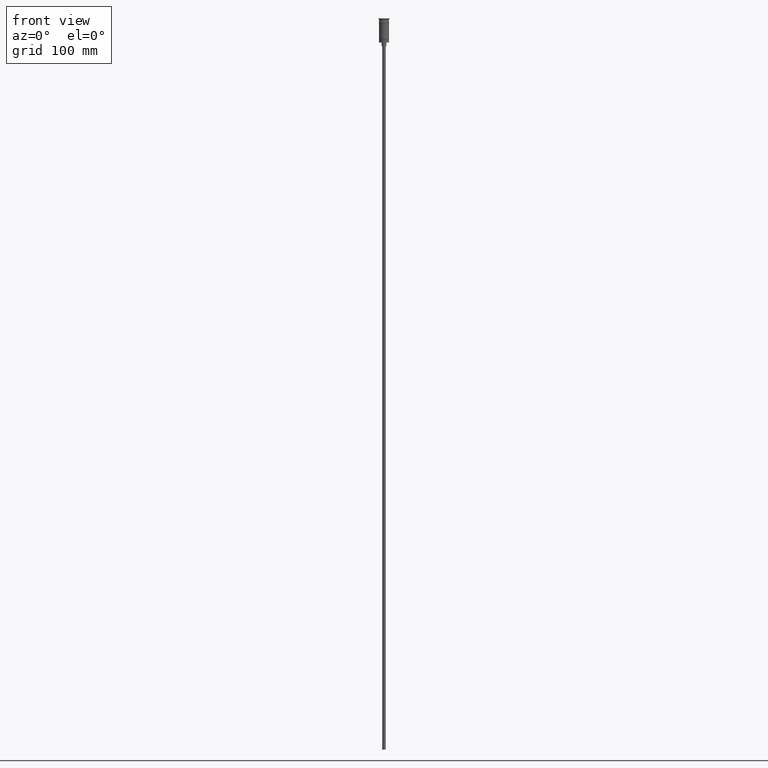
[diagram: clean part render]
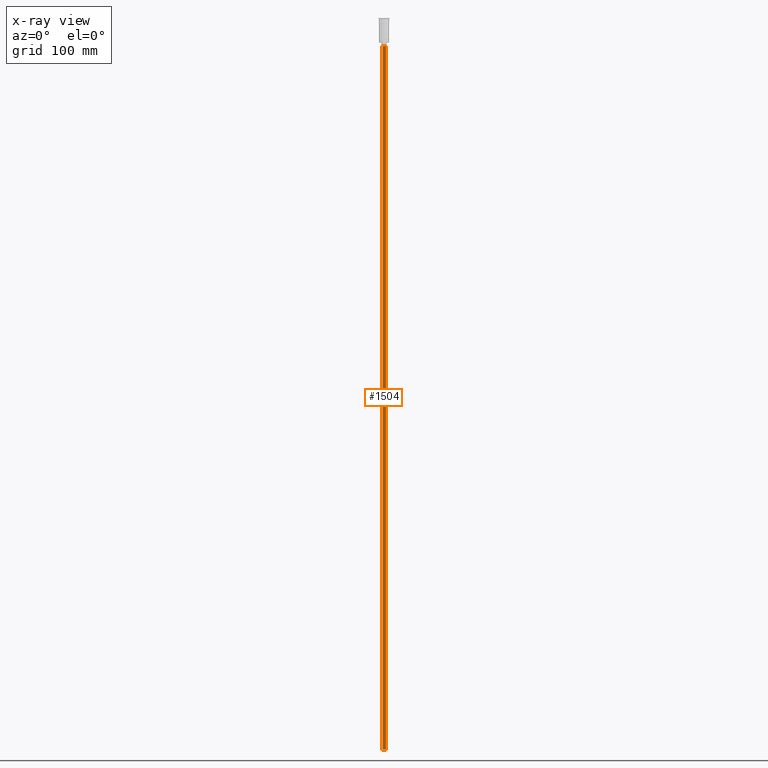
[diagram: x-ray — body ghosted, one internal face saturated and labeled with its STEP entity id]
A machine part, front view, then the same camera in x-ray: the body is ghosted and one INTERNAL B-rep face — a face not visible from any outside direction — is saturated and labeled: STEP entity #1504.
In plain terms, the highlighted cylindrical surface (edge-blend (fillet) strip) has radius 1.5 mm, axis along (-0, -0, 1).
Its self-contained STEP definition (entity closure, byte-faithful):
#4 = EDGE_CURVE ( 'NONE', #297, #76, #35, .T. ) ;
#35 = CIRCLE ( 'NONE', #598, 1.500000000000000222 ) ;
#40 = AXIS2_PLACEMENT_3D ( 'NONE', #894, #640, #1137 ) ;
#47 = DIRECTION ( 'NONE',  ( -0.000000000000000000, -0.000000000000000000, 1.000000000000000000 ) ) ;
#76 = VERTEX_POINT ( 'NONE', #1078 ) ;
#81 = VERTEX_POINT ( 'NONE', #943 ) ;
#91 = AXIS2_PLACEMENT_3D ( 'NONE', #588, #1214, #239 ) ;
#138 = CARTESIAN_POINT ( 'NONE',  ( 1.500000000000000222, 0.000000000000000000, -23.49999999999999645 ) ) ;
#239 = DIRECTION ( 'NONE',  ( 1.000000000000000000, 0.000000000000000000, 0.000000000000000000 ) ) ;
#297 = VERTEX_POINT ( 'NONE', #861 ) ;
#301 = VECTOR ( 'NONE', #47, 1000.000000000000000 ) ;
#415 = LINE ( 'NONE', #423, #575 ) ;
#423 = CARTESIAN_POINT ( 'NONE',  ( -1.500000000000000222, 1.836970198721030181E-16, -620.4999999999998863 ) ) ;
#479 = FACE_OUTER_BOUND ( 'NONE', #1308, .T. ) ;
#506 = DIRECTION ( 'NONE',  ( 0.000000000000000000, 0.000000000000000000, -1.000000000000000000 ) ) ;
#526 = DIRECTION ( 'NONE',  ( -0.000000000000000000, -0.000000000000000000, 1.000000000000000000 ) ) ;
#575 = VECTOR ( 'NONE', #526, 1000.000000000000000 ) ;
#588 = CARTESIAN_POINT ( 'NONE',  ( 0.000000000000000000, 0.000000000000000000, -620.4999999999998863 ) ) ;
#591 = CARTESIAN_POINT ( 'NONE',  ( 0.000000000000000000, 0.000000000000000000, -620.4999999999998863 ) ) ;
#598 = AXIS2_PLACEMENT_3D ( 'NONE', #591, #506, #1143 ) ;
#640 = DIRECTION ( 'NONE',  ( 0.000000000000000000, 0.000000000000000000, -1.000000000000000000 ) ) ;
#691 = ORIENTED_EDGE ( 'NONE', *, *, #1012, .T. ) ;
#732 = CIRCLE ( 'NONE', #40, 1.500000000000000222 ) ;
#749 = ORIENTED_EDGE ( 'NONE', *, *, #1413, .F. ) ;
#775 = CARTESIAN_POINT ( 'NONE',  ( 1.500000000000000222, 0.000000000000000000, -620.4999999999998863 ) ) ;
#790 = VERTEX_POINT ( 'NONE', #138 ) ;
#792 = LINE ( 'NONE', #775, #301 ) ;
#861 = CARTESIAN_POINT ( 'NONE',  ( -1.500000000000000222, 1.836970198721030181E-16, -620.4999999999998863 ) ) ;
#894 = CARTESIAN_POINT ( 'NONE',  ( 0.000000000000000000, 0.000000000000000000, -23.49999999999999645 ) ) ;
#943 = CARTESIAN_POINT ( 'NONE',  ( -1.500000000000000222, 1.836970198721030181E-16, -23.49999999999999645 ) ) ;
#959 = EDGE_CURVE ( 'NONE', #81, #790, #732, .T. ) ;
#1012 = EDGE_CURVE ( 'NONE', #297, #81, #415, .T. ) ;
#1074 = ORIENTED_EDGE ( 'NONE', *, *, #4, .F. ) ;
#1078 = CARTESIAN_POINT ( 'NONE',  ( 1.500000000000000222, 0.000000000000000000, -620.4999999999998863 ) ) ;
#1102 = CYLINDRICAL_SURFACE ( 'NONE', #91, 1.500000000000000222 ) ;
#1137 = DIRECTION ( 'NONE',  ( -1.000000000000000000, 0.000000000000000000, 0.000000000000000000 ) ) ;
#1143 = DIRECTION ( 'NONE',  ( -1.000000000000000000, 0.000000000000000000, 0.000000000000000000 ) ) ;
#1214 = DIRECTION ( 'NONE',  ( -0.000000000000000000, -0.000000000000000000, 1.000000000000000000 ) ) ;
#1308 = EDGE_LOOP ( 'NONE', ( #1074, #691, #1583, #749 ) ) ;
#1413 = EDGE_CURVE ( 'NONE', #76, #790, #792, .T. ) ;
#1504 = ADVANCED_FACE ( 'NONE', ( #479 ), #1102, .T. ) ;
#1583 = ORIENTED_EDGE ( 'NONE', *, *, #959, .T. ) ;